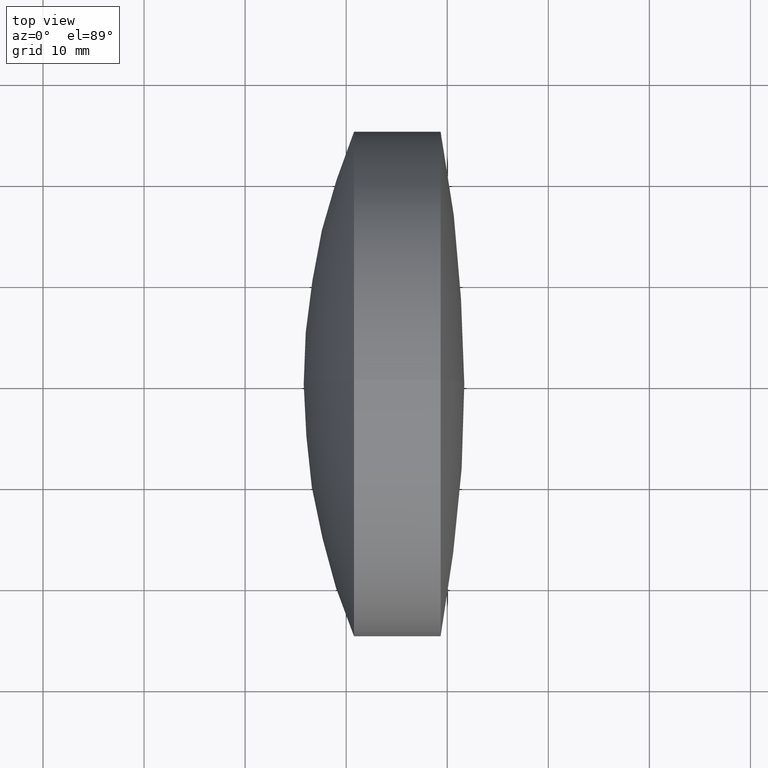
[diagram: clean part render]
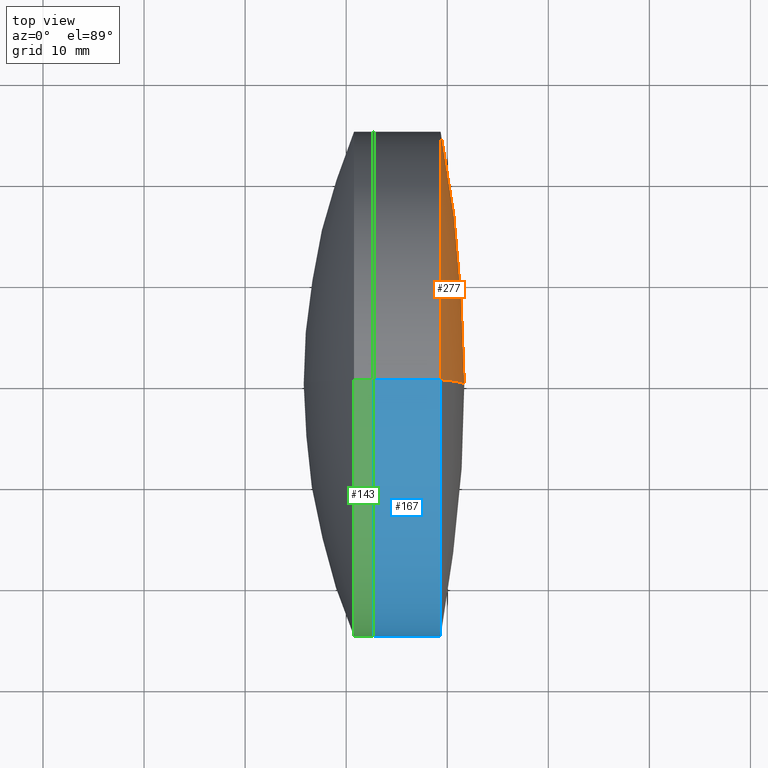
[diagram: same view with three faces highlighted in distinct colors, each labeled with its STEP entity id]
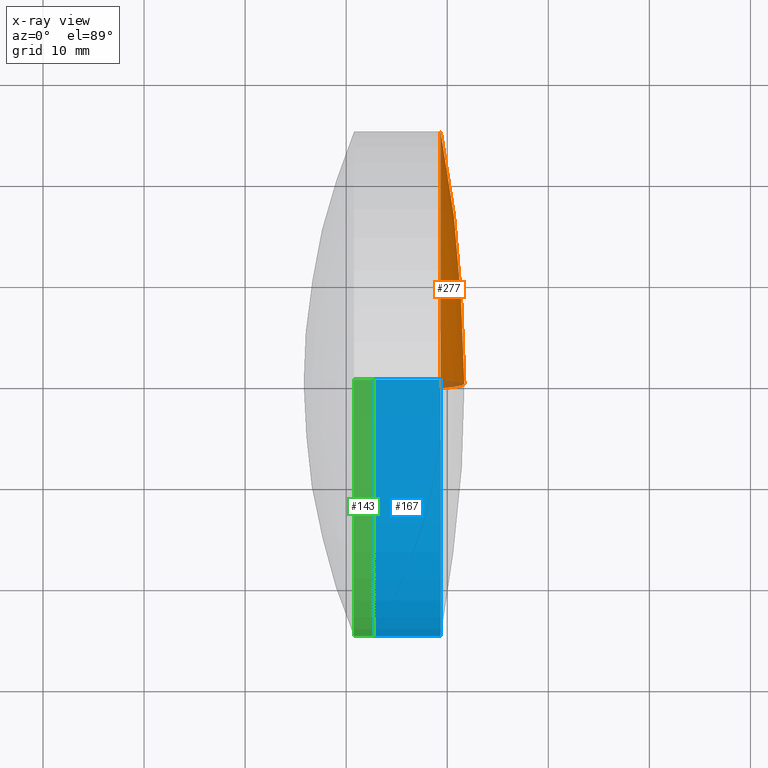
[diagram: x-ray of the same camera — body ghosted, the three highlighted faces saturated]
A machine part, top view with three faces highlighted in distinct colors.
The next image is the same camera in x-ray (body ghosted, the three faces saturated) — at least one of them is partly hidden behind the body in this view.
Their STEP definitions:

[orange] entity #277 — the highlighted spherical surface has radius 134.592 mm.
#3 = AXIS2_PLACEMENT_3D ( 'NONE', #216, #189, #300 ) ;
#10 = SPHERICAL_SURFACE ( 'NONE', #3, 134.5920000000000100 ) ;
#29 = CIRCLE ( 'NONE', #207, 134.5920000000000100 ) ;
#30 = CARTESIAN_POINT ( 'NONE',  ( 97.09345515742958800, 0.0000000000000000000, 0.0000000000000000000 ) ) ;
#31 = VERTEX_POINT ( 'NONE', #194 ) ;
#51 = EDGE_CURVE ( 'NONE', #31, #335, #29, .T. ) ;
#56 = CIRCLE ( 'NONE', #230, 134.5920000000000100 ) ;
#66 = DIRECTION ( 'NONE',  ( -1.000000000000000000, -0.0000000000000000000, -0.0000000000000000000 ) ) ;
#85 = FACE_OUTER_BOUND ( 'NONE', #117, .T. ) ;
#101 = CARTESIAN_POINT ( 'NONE',  ( 229.3432433009272400, 3.061616997868384200E-015, -25.00000000000001100 ) ) ;
#104 = CIRCLE ( 'NONE', #297, 25.00000000000001100 ) ;
#117 = EDGE_LOOP ( 'NONE', ( #133, #281, #261 ) ) ;
#130 = VERTEX_POINT ( 'NONE', #148 ) ;
#133 = ORIENTED_EDGE ( 'NONE', *, *, #250, .F. ) ;
#148 = CARTESIAN_POINT ( 'NONE',  ( 229.3432433009272400, 0.0000000000000000000, 25.00000000000001100 ) ) ;
#171 = CARTESIAN_POINT ( 'NONE',  ( 229.3432433009272400, 0.0000000000000000000, 0.0000000000000000000 ) ) ;
#179 = DIRECTION ( 'NONE',  ( 0.0000000000000000000, -1.000000000000000000, 0.0000000000000000000 ) ) ;
#189 = DIRECTION ( 'NONE',  ( 0.0000000000000000000, 1.000000000000000000, 0.0000000000000000000 ) ) ;
#194 = CARTESIAN_POINT ( 'NONE',  ( 231.6854551574296000, 0.0000000000000000000, 8.241383099542028400E-015 ) ) ;
#207 = AXIS2_PLACEMENT_3D ( 'NONE', #30, #266, #252 ) ;
#214 = EDGE_CURVE ( 'NONE', #130, #335, #104, .T. ) ;
#216 = CARTESIAN_POINT ( 'NONE',  ( 97.09345515742958800, 0.0000000000000000000, 0.0000000000000000000 ) ) ;
#230 = AXIS2_PLACEMENT_3D ( 'NONE', #318, #179, #258 ) ;
#250 = EDGE_CURVE ( 'NONE', #31, #130, #56, .T. ) ;
#252 = DIRECTION ( 'NONE',  ( 0.0000000000000000000, -1.224646799147353200E-016, 1.000000000000000000 ) ) ;
#258 = DIRECTION ( 'NONE',  ( 0.0000000000000000000, 0.0000000000000000000, -1.000000000000000000 ) ) ;
#261 = ORIENTED_EDGE ( 'NONE', *, *, #214, .F. ) ;
#266 = DIRECTION ( 'NONE',  ( -0.0000000000000000000, 1.000000000000000000, 1.224646799147353200E-016 ) ) ;
#277 = ADVANCED_FACE ( 'NONE', ( #85 ), #10, .T. ) ;
#281 = ORIENTED_EDGE ( 'NONE', *, *, #51, .T. ) ;
#297 = AXIS2_PLACEMENT_3D ( 'NONE', #171, #66, #308 ) ;
#300 = DIRECTION ( 'NONE',  ( 0.0000000000000000000, 0.0000000000000000000, 1.000000000000000000 ) ) ;
#308 = DIRECTION ( 'NONE',  ( 0.0000000000000000000, 0.0000000000000000000, 1.000000000000000000 ) ) ;
#318 = CARTESIAN_POINT ( 'NONE',  ( 97.09345515742958800, 0.0000000000000000000, 0.0000000000000000000 ) ) ;
#335 = VERTEX_POINT ( 'NONE', #101 ) ;

[blue] entity #167 — the highlighted cylindrical surface (partial cylindrical patch) has radius 25 mm, axis along (-1, -0, -0).
#13 = VERTEX_POINT ( 'NONE', #235 ) ;
#15 = VERTEX_POINT ( 'NONE', #234 ) ;
#18 = EDGE_CURVE ( 'NONE', #335, #130, #37, .T. ) ;
#22 = DIRECTION ( 'NONE',  ( 0.0000000000000000000, 0.0000000000000000000, 1.000000000000000000 ) ) ;
#24 = DIRECTION ( 'NONE',  ( -1.000000000000000000, -0.0000000000000000000, -0.0000000000000000000 ) ) ;
#32 = ORIENTED_EDGE ( 'NONE', *, *, #127, .F. ) ;
#35 = LINE ( 'NONE', #239, #110 ) ;
#37 = CIRCLE ( 'NONE', #131, 25.00000000000001100 ) ;
#49 = AXIS2_PLACEMENT_3D ( 'NONE', #151, #78, #22 ) ;
#54 = CARTESIAN_POINT ( 'NONE',  ( -0.5519199926577972300, 0.0000000000000000000, 0.0000000000000000000 ) ) ;
#67 = ORIENTED_EDGE ( 'NONE', *, *, #68, .F. ) ;
#68 = EDGE_CURVE ( 'NONE', #15, #13, #136, .T. ) ;
#77 = DIRECTION ( 'NONE',  ( -1.000000000000000000, -0.0000000000000000000, -0.0000000000000000000 ) ) ;
#78 = DIRECTION ( 'NONE',  ( -1.000000000000000000, -0.0000000000000000000, -0.0000000000000000000 ) ) ;
#79 = CYLINDRICAL_SURFACE ( 'NONE', #87, 25.00000000000001100 ) ;
#87 = AXIS2_PLACEMENT_3D ( 'NONE', #54, #77, #156 ) ;
#91 = FACE_OUTER_BOUND ( 'NONE', #95, .T. ) ;
#95 = EDGE_LOOP ( 'NONE', ( #32, #201, #346, #67 ) ) ;
#101 = CARTESIAN_POINT ( 'NONE',  ( 229.3432433009272400, 3.061616997868384200E-015, -25.00000000000001100 ) ) ;
#110 = VECTOR ( 'NONE', #169, 1000.000000000000000 ) ;
#112 = CARTESIAN_POINT ( 'NONE',  ( -0.5519199926577972300, 3.061616997868384200E-015, -25.00000000000001100 ) ) ;
#127 = EDGE_CURVE ( 'NONE', #335, #15, #256, .T. ) ;
#130 = VERTEX_POINT ( 'NONE', #148 ) ;
#131 = AXIS2_PLACEMENT_3D ( 'NONE', #254, #24, #274 ) ;
#136 = CIRCLE ( 'NONE', #49, 25.00000000000001100 ) ;
#148 = CARTESIAN_POINT ( 'NONE',  ( 229.3432433009272400, 0.0000000000000000000, 25.00000000000001100 ) ) ;
#151 = CARTESIAN_POINT ( 'NONE',  ( 222.6946538294740800, 0.0000000000000000000, 0.0000000000000000000 ) ) ;
#156 = DIRECTION ( 'NONE',  ( 0.0000000000000000000, 0.0000000000000000000, 1.000000000000000000 ) ) ;
#166 = DIRECTION ( 'NONE',  ( -1.000000000000000000, -0.0000000000000000000, -0.0000000000000000000 ) ) ;
#167 = ADVANCED_FACE ( 'NONE', ( #91 ), #79, .T. ) ;
#169 = DIRECTION ( 'NONE',  ( -1.000000000000000000, -0.0000000000000000000, -0.0000000000000000000 ) ) ;
#201 = ORIENTED_EDGE ( 'NONE', *, *, #18, .T. ) ;
#222 = EDGE_CURVE ( 'NONE', #130, #13, #35, .T. ) ;
#234 = CARTESIAN_POINT ( 'NONE',  ( 222.6946538294740800, 3.061616997868383800E-015, -25.00000000000001100 ) ) ;
#235 = CARTESIAN_POINT ( 'NONE',  ( 222.6946538294740800, 0.0000000000000000000, 25.00000000000000700 ) ) ;
#239 = CARTESIAN_POINT ( 'NONE',  ( -0.5519199926577972300, 0.0000000000000000000, 25.00000000000001100 ) ) ;
#254 = CARTESIAN_POINT ( 'NONE',  ( 229.3432433009272400, 0.0000000000000000000, 0.0000000000000000000 ) ) ;
#256 = LINE ( 'NONE', #112, #288 ) ;
#274 = DIRECTION ( 'NONE',  ( 0.0000000000000000000, 0.0000000000000000000, 1.000000000000000000 ) ) ;
#288 = VECTOR ( 'NONE', #166, 1000.000000000000000 ) ;
#335 = VERTEX_POINT ( 'NONE', #101 ) ;
#346 = ORIENTED_EDGE ( 'NONE', *, *, #222, .T. ) ;

[green] entity #143 — the highlighted cylindrical surface (partial cylindrical patch) has radius 25 mm, axis along (-1, -0, -0).
#2 = CARTESIAN_POINT ( 'NONE',  ( 222.6946538294740800, 3.061616997868383000E-015, -25.00000000000000000 ) ) ;
#7 = VECTOR ( 'NONE', #322, 1000.000000000000000 ) ;
#26 = DIRECTION ( 'NONE',  ( -1.000000000000000000, -0.0000000000000000000, -0.0000000000000000000 ) ) ;
#27 = VERTEX_POINT ( 'NONE', #341 ) ;
#52 = CIRCLE ( 'NONE', #333, 24.99999999999999300 ) ;
#53 = DIRECTION ( 'NONE',  ( 0.0000000000000000000, 0.0000000000000000000, 1.000000000000000000 ) ) ;
#59 = LINE ( 'NONE', #240, #7 ) ;
#60 = VERTEX_POINT ( 'NONE', #65 ) ;
#62 = ORIENTED_EDGE ( 'NONE', *, *, #154, .F. ) ;
#65 = CARTESIAN_POINT ( 'NONE',  ( 220.7738858347917100, 3.061616997868383800E-015, -25.00000000000001400 ) ) ;
#105 = DIRECTION ( 'NONE',  ( -1.000000000000000000, -0.0000000000000000000, -0.0000000000000000000 ) ) ;
#106 = DIRECTION ( 'NONE',  ( 0.0000000000000000000, 0.0000000000000000000, 1.000000000000000000 ) ) ;
#128 = VERTEX_POINT ( 'NONE', #284 ) ;
#129 = CARTESIAN_POINT ( 'NONE',  ( 222.6946538294740800, 0.0000000000000000000, 0.0000000000000000000 ) ) ;
#143 = ADVANCED_FACE ( 'NONE', ( #343 ), #260, .T. ) ;
#154 = EDGE_CURVE ( 'NONE', #60, #128, #52, .T. ) ;
#155 = CIRCLE ( 'NONE', #319, 24.99999999999999600 ) ;
#159 = DIRECTION ( 'NONE',  ( -1.000000000000000000, -0.0000000000000000000, -0.0000000000000000000 ) ) ;
#204 = VECTOR ( 'NONE', #26, 1000.000000000000000 ) ;
#228 = CARTESIAN_POINT ( 'NONE',  ( 124.5233095260452400, 0.0000000000000000000, 24.99999999999999300 ) ) ;
#238 = DIRECTION ( 'NONE',  ( -1.000000000000000000, -0.0000000000000000000, -0.0000000000000000000 ) ) ;
#240 = CARTESIAN_POINT ( 'NONE',  ( 124.5233095260452400, 3.061616997868382300E-015, -24.99999999999999300 ) ) ;
#242 = CARTESIAN_POINT ( 'NONE',  ( 124.5233095260452400, 0.0000000000000000000, 0.0000000000000000000 ) ) ;
#245 = ORIENTED_EDGE ( 'NONE', *, *, #293, .F. ) ;
#257 = AXIS2_PLACEMENT_3D ( 'NONE', #242, #105, #106 ) ;
#260 = CYLINDRICAL_SURFACE ( 'NONE', #257, 24.99999999999999300 ) ;
#262 = ORIENTED_EDGE ( 'NONE', *, *, #275, .T. ) ;
#275 = EDGE_CURVE ( 'NONE', #321, #27, #155, .T. ) ;
#284 = CARTESIAN_POINT ( 'NONE',  ( 220.7738858347917100, 0.0000000000000000000, 25.00000000000000700 ) ) ;
#289 = ORIENTED_EDGE ( 'NONE', *, *, #311, .T. ) ;
#293 = EDGE_CURVE ( 'NONE', #321, #60, #59, .T. ) ;
#296 = EDGE_LOOP ( 'NONE', ( #245, #262, #289, #62 ) ) ;
#311 = EDGE_CURVE ( 'NONE', #27, #128, #324, .T. ) ;
#319 = AXIS2_PLACEMENT_3D ( 'NONE', #129, #159, #53 ) ;
#320 = DIRECTION ( 'NONE',  ( 0.0000000000000000000, 0.0000000000000000000, 1.000000000000000000 ) ) ;
#321 = VERTEX_POINT ( 'NONE', #2 ) ;
#322 = DIRECTION ( 'NONE',  ( -1.000000000000000000, -0.0000000000000000000, -0.0000000000000000000 ) ) ;
#324 = LINE ( 'NONE', #228, #204 ) ;
#333 = AXIS2_PLACEMENT_3D ( 'NONE', #347, #238, #320 ) ;
#341 = CARTESIAN_POINT ( 'NONE',  ( 222.6946538294740800, 0.0000000000000000000, 24.99999999999999600 ) ) ;
#343 = FACE_OUTER_BOUND ( 'NONE', #296, .T. ) ;
#347 = CARTESIAN_POINT ( 'NONE',  ( 220.7738858347917100, 0.0000000000000000000, 0.0000000000000000000 ) ) ;